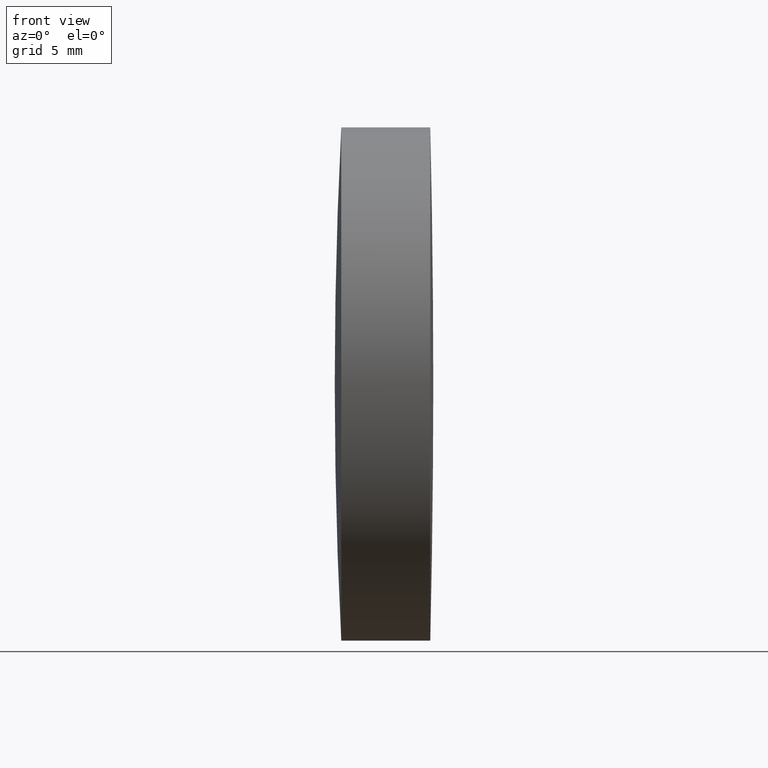
[diagram: clean part render]
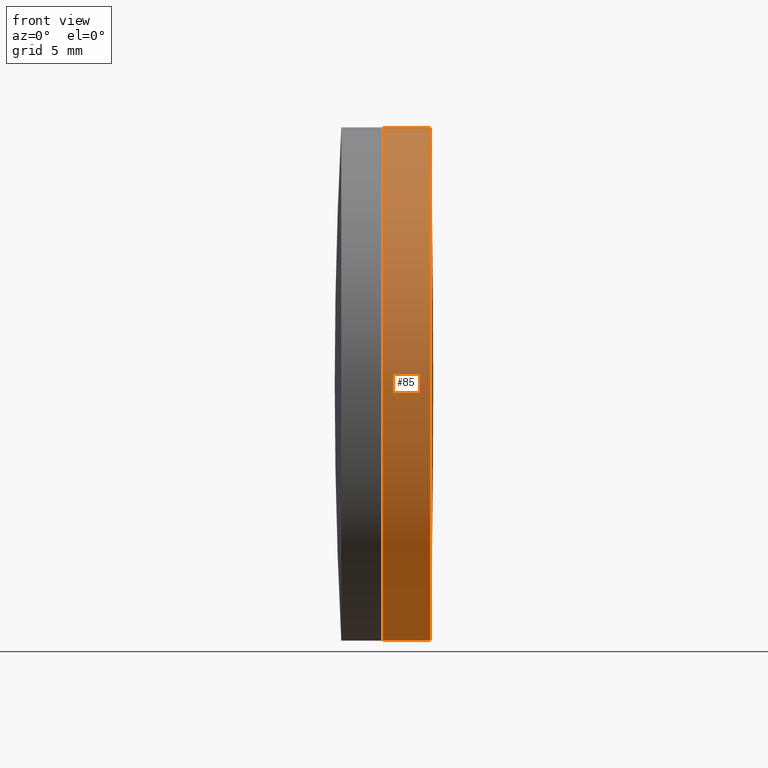
[diagram: same view with one face highlighted and labeled with its STEP entity id]
A machine part, front view. The second image highlights one B-rep face of the part: STEP entity #85.
In plain terms, the highlighted cylindrical surface (partial cylindrical patch) has radius 12.5 mm, axis along (-1, -0, -0).
Its self-contained STEP definition (entity closure, byte-faithful):
#7 = CARTESIAN_POINT ( 'NONE',  ( 176.7878593161265700, 1.530808498934198400E-015, -12.50000000000005700 ) ) ;
#11 = DIRECTION ( 'NONE',  ( -1.000000000000000000, -0.0000000000000000000, -0.0000000000000000000 ) ) ;
#24 = CYLINDRICAL_SURFACE ( 'NONE', #283, 12.50000000000005700 ) ;
#28 = AXIS2_PLACEMENT_3D ( 'NONE', #204, #178, #45 ) ;
#38 = CARTESIAN_POINT ( 'NONE',  ( 176.7878593161265700, 0.0000000000000000000, 12.50000000000005700 ) ) ;
#45 = DIRECTION ( 'NONE',  ( 0.0000000000000000000, 0.0000000000000000000, 1.000000000000000000 ) ) ;
#49 = VERTEX_POINT ( 'NONE', #38 ) ;
#50 = DIRECTION ( 'NONE',  ( -1.000000000000000000, -0.0000000000000000000, -0.0000000000000000000 ) ) ;
#70 = ORIENTED_EDGE ( 'NONE', *, *, #234, .T. ) ;
#78 = ORIENTED_EDGE ( 'NONE', *, *, #103, .F. ) ;
#85 = ADVANCED_FACE ( 'NONE', ( #240 ), #24, .T. ) ;
#87 = VECTOR ( 'NONE', #11, 1000.000000000000000 ) ;
#88 = CARTESIAN_POINT ( 'NONE',  ( -0.5519199926577972300, 1.530808498934198400E-015, -12.50000000000005700 ) ) ;
#103 = EDGE_CURVE ( 'NONE', #281, #220, #300, .T. ) ;
#106 = VECTOR ( 'NONE', #50, 1000.000000000000000 ) ;
#117 = DIRECTION ( 'NONE',  ( -1.000000000000000000, -0.0000000000000000000, -0.0000000000000000000 ) ) ;
#122 = ORIENTED_EDGE ( 'NONE', *, *, #243, .F. ) ;
#125 = CARTESIAN_POINT ( 'NONE',  ( -0.5519199926577972300, 0.0000000000000000000, 12.50000000000005700 ) ) ;
#131 = VERTEX_POINT ( 'NONE', #203 ) ;
#142 = EDGE_CURVE ( 'NONE', #131, #49, #280, .T. ) ;
#146 = ORIENTED_EDGE ( 'NONE', *, *, #142, .T. ) ;
#173 = EDGE_LOOP ( 'NONE', ( #78, #70, #146, #122 ) ) ;
#178 = DIRECTION ( 'NONE',  ( -1.000000000000000000, -0.0000000000000000000, -0.0000000000000000000 ) ) ;
#203 = CARTESIAN_POINT ( 'NONE',  ( 179.1238445691506900, 0.0000000000000000000, 12.50000000000000900 ) ) ;
#204 = CARTESIAN_POINT ( 'NONE',  ( 179.1238445691506900, 0.0000000000000000000, 0.0000000000000000000 ) ) ;
#210 = AXIS2_PLACEMENT_3D ( 'NONE', #302, #299, #293 ) ;
#220 = VERTEX_POINT ( 'NONE', #7 ) ;
#234 = EDGE_CURVE ( 'NONE', #281, #131, #255, .T. ) ;
#238 = CARTESIAN_POINT ( 'NONE',  ( 179.1238445691506900, 1.530808498934195700E-015, -12.50000000000000900 ) ) ;
#240 = FACE_OUTER_BOUND ( 'NONE', #173, .T. ) ;
#241 = DIRECTION ( 'NONE',  ( 0.0000000000000000000, 0.0000000000000000000, 1.000000000000000000 ) ) ;
#243 = EDGE_CURVE ( 'NONE', #220, #49, #340, .T. ) ;
#255 = CIRCLE ( 'NONE', #28, 12.50000000000000900 ) ;
#280 = LINE ( 'NONE', #125, #87 ) ;
#281 = VERTEX_POINT ( 'NONE', #238 ) ;
#283 = AXIS2_PLACEMENT_3D ( 'NONE', #323, #117, #241 ) ;
#293 = DIRECTION ( 'NONE',  ( 0.0000000000000000000, 0.0000000000000000000, 1.000000000000000000 ) ) ;
#299 = DIRECTION ( 'NONE',  ( -1.000000000000000000, -0.0000000000000000000, -0.0000000000000000000 ) ) ;
#300 = LINE ( 'NONE', #88, #106 ) ;
#302 = CARTESIAN_POINT ( 'NONE',  ( 176.7878593161265700, 0.0000000000000000000, 0.0000000000000000000 ) ) ;
#323 = CARTESIAN_POINT ( 'NONE',  ( -0.5519199926577972300, 0.0000000000000000000, 0.0000000000000000000 ) ) ;
#340 = CIRCLE ( 'NONE', #210, 12.50000000000010300 ) ;